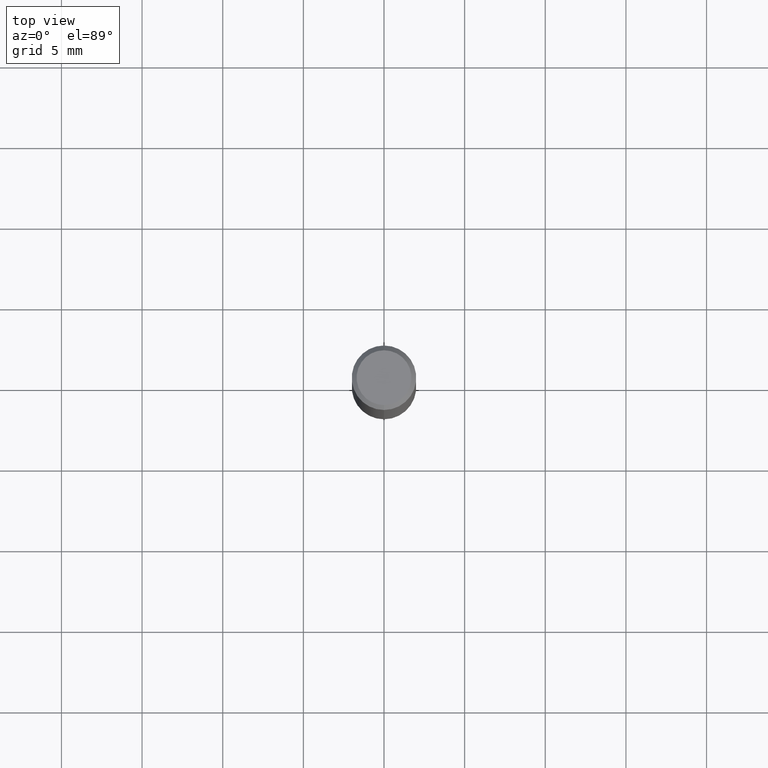
[diagram: clean part render]
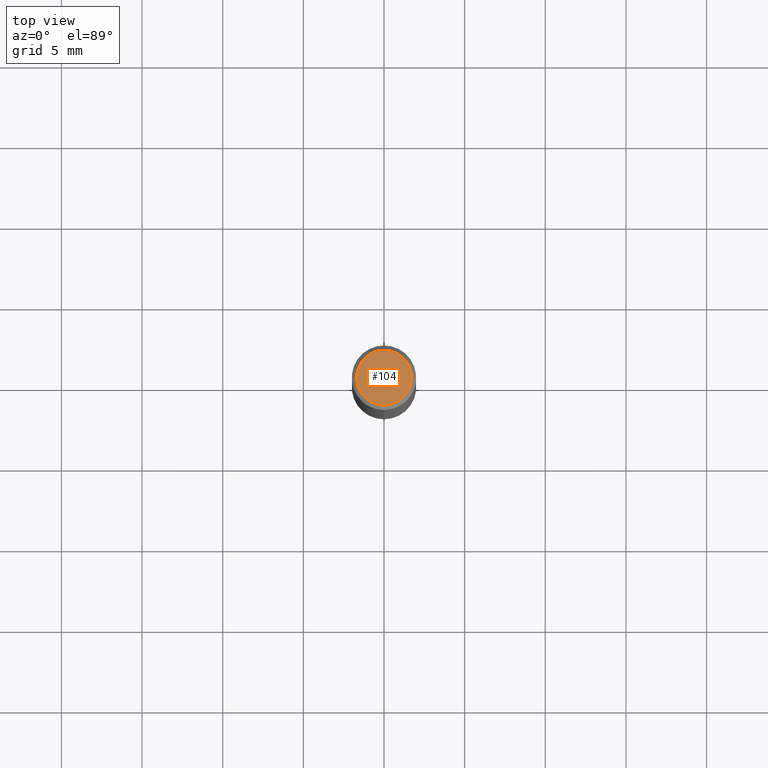
[diagram: same view with one face highlighted and labeled with its STEP entity id]
A machine part, top view. The second image highlights one B-rep face of the part: STEP entity #104.
In plain terms, the highlighted planar face has unit normal (-0, 0, 1).
Its self-contained STEP definition (entity closure, byte-faithful):
#98=EDGE_CURVE('',#114,#162,#236,.T.);
#104=ADVANCED_FACE('',(#242),#243,.T.);
#112=EDGE_CURVE('',#162,#114,#252,.T.);
#114=VERTEX_POINT('',#254);
#162=VERTEX_POINT('',#306);
#236=CIRCLE('',#385,1.7);
#242=FACE_OUTER_BOUND('',#392,.T.);
#243=PLANE('',#393);
#252=CIRCLE('',#405,1.7);
#254=CARTESIAN_POINT('',(0.0,1.7,0.0));
#306=CARTESIAN_POINT('',(2.08183080149804E-016,-1.7,0.0));
#385=AXIS2_PLACEMENT_3D('',#552,#553,#554);
#392=EDGE_LOOP('',(#559,#560));
#393=AXIS2_PLACEMENT_3D('',#561,#562,#563);
#405=AXIS2_PLACEMENT_3D('',#573,#574,#575);
#552=CARTESIAN_POINT('',(0.0,0.0,0.0));
#553=DIRECTION('',(0.0,0.0,-1.0));
#554=DIRECTION('',(0.0,1.0,0.0));
#559=ORIENTED_EDGE('',*,*,#98,.F.);
#560=ORIENTED_EDGE('',*,*,#112,.F.);
#561=CARTESIAN_POINT('',(0.0,0.85,0.0));
#562=DIRECTION('',(-0.0,0.0,1.0));
#563=DIRECTION('',(0.0,-1.0,0.0));
#573=CARTESIAN_POINT('',(0.0,0.0,0.0));
#574=DIRECTION('',(0.0,0.0,-1.0));
#575=DIRECTION('',(0.0,1.0,0.0));